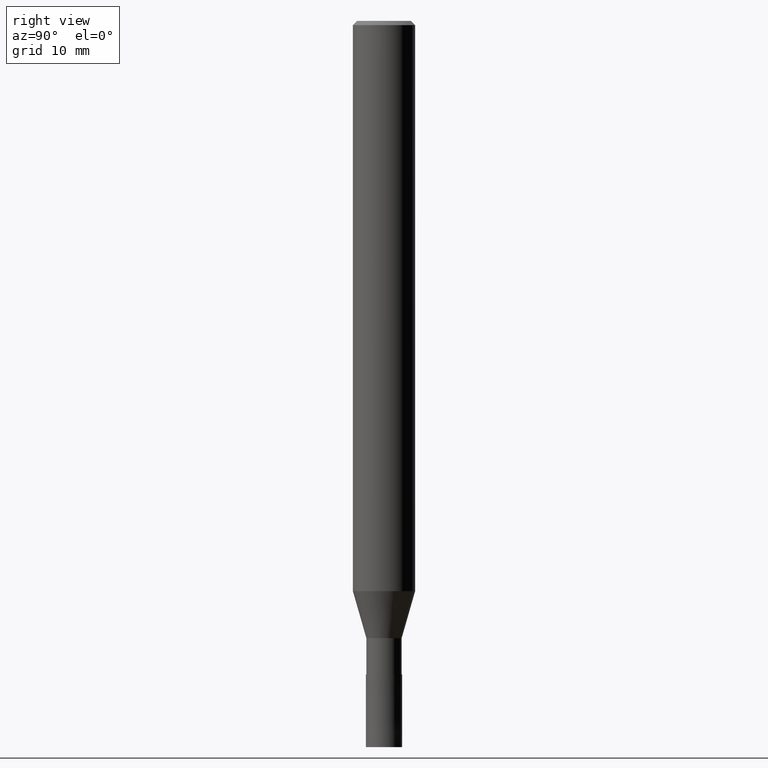
[diagram: clean part render]
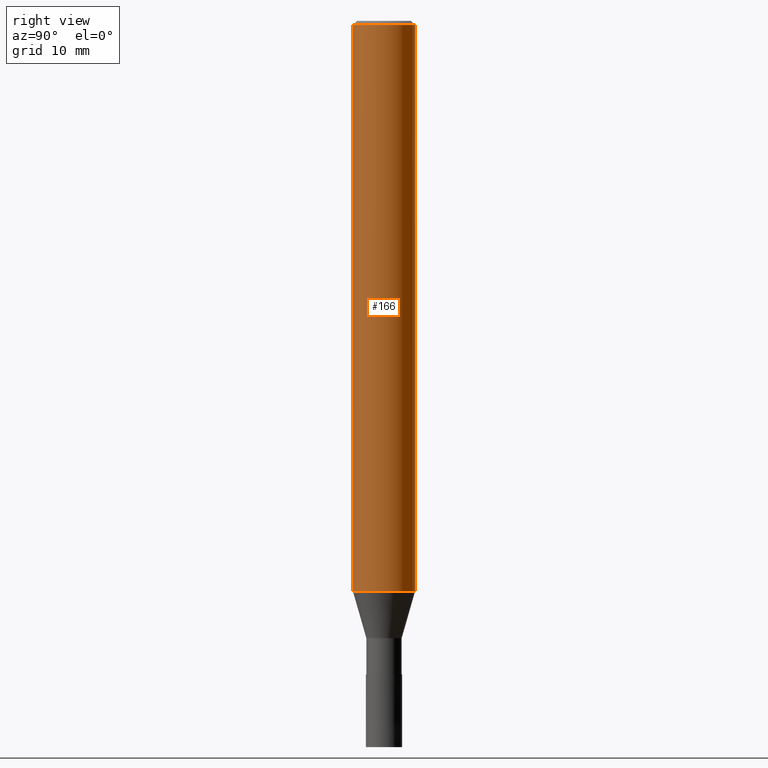
[diagram: same view with one face highlighted and labeled with its STEP entity id]
A machine part, right view. The second image highlights one B-rep face of the part: STEP entity #166.
In plain terms, the highlighted cylindrical surface (edge-blend (fillet) strip) has radius 3 mm, axis along (-0, -0, 1).
Its self-contained STEP definition (entity closure, byte-faithful):
#100=EDGE_CURVE('',#128,#142,#238,.T.);
#128=VERTEX_POINT('',#270);
#132=EDGE_CURVE('',#154,#142,#274,.T.);
#136=VERTEX_POINT('',#278);
#142=VERTEX_POINT('',#284);
#154=VERTEX_POINT('',#298);
#160=EDGE_CURVE('',#136,#154,#304,.T.);
#166=ADVANCED_FACE('',(#310),#311,.T.);
#178=EDGE_CURVE('',#128,#136,#325,.T.);
#238=CIRCLE('',#387,3.0);
#270=CARTESIAN_POINT('',(0.0,3.0,-0.399999999999999));
#274=LINE('',#434,#435);
#278=CARTESIAN_POINT('',(0.0,3.0,-54.966));
#284=CARTESIAN_POINT('',(3.67381906146713E-016,-3.0,-0.399999999999999));
#298=CARTESIAN_POINT('',(3.67381906146713E-016,-3.0,-54.966));
#304=CIRCLE('',#471,3.0);
#310=FACE_OUTER_BOUND('',#480,.T.);
#311=CYLINDRICAL_SURFACE('',#481,3.0);
#325=LINE('',#499,#500);
#387=AXIS2_PLACEMENT_3D('',#554,#555,#556);
#434=CARTESIAN_POINT('',(3.67381906146713E-016,-3.0,-27.683));
#435=VECTOR('',#600,1.0);
#471=AXIS2_PLACEMENT_3D('',#627,#628,#629);
#480=EDGE_LOOP('',(#635,#636,#637,#638));
#481=AXIS2_PLACEMENT_3D('',#639,#640,#641);
#499=CARTESIAN_POINT('',(-3.67381906146713E-016,3.0,-27.683));
#500=VECTOR('',#660,1.0);
#554=CARTESIAN_POINT('',(0.0,0.0,-0.399999999999999));
#555=DIRECTION('',(0.0,0.0,-1.0));
#556=DIRECTION('',(0.0,1.0,0.0));
#600=DIRECTION('',(-0.0,-0.0,1.0));
#627=CARTESIAN_POINT('',(0.0,0.0,-54.966));
#628=DIRECTION('',(0.0,0.0,-1.0));
#629=DIRECTION('',(0.0,1.0,0.0));
#635=ORIENTED_EDGE('',*,*,#178,.F.);
#636=ORIENTED_EDGE('',*,*,#100,.T.);
#637=ORIENTED_EDGE('',*,*,#132,.F.);
#638=ORIENTED_EDGE('',*,*,#160,.F.);
#639=CARTESIAN_POINT('',(0.0,0.0,-27.683));
#640=DIRECTION('',(-0.0,-0.0,1.0));
#641=DIRECTION('',(0.0,1.0,0.0));
#660=DIRECTION('',(0.0,0.0,-1.0));